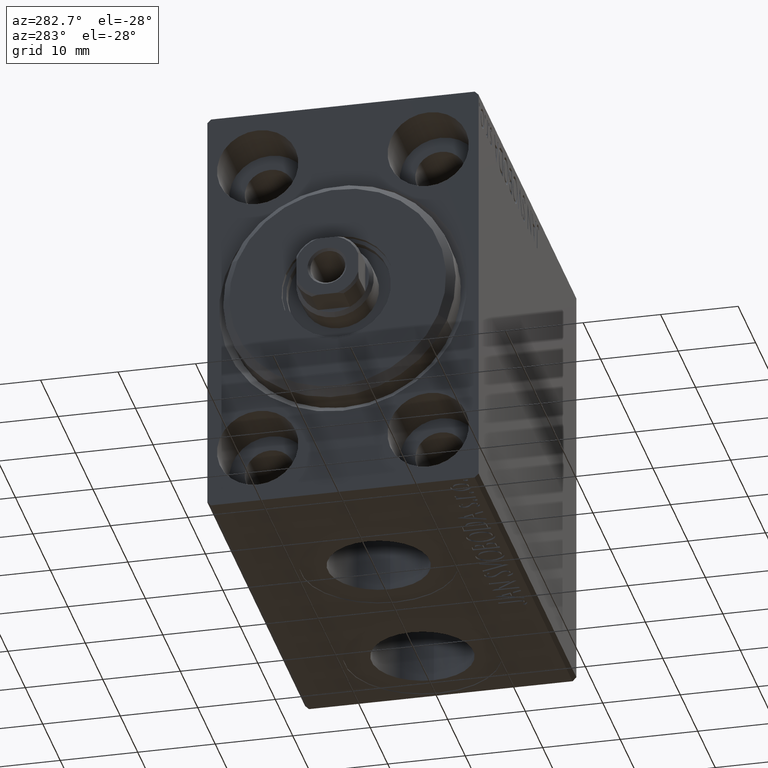
[diagram: clean part render]
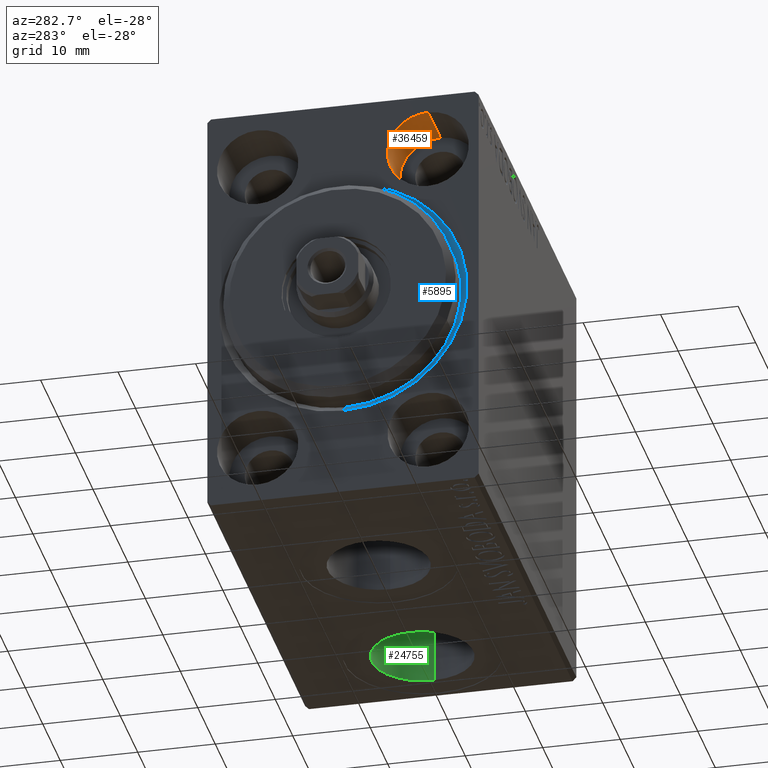
[diagram: same view with three faces highlighted in distinct colors, each labeled with its STEP entity id]
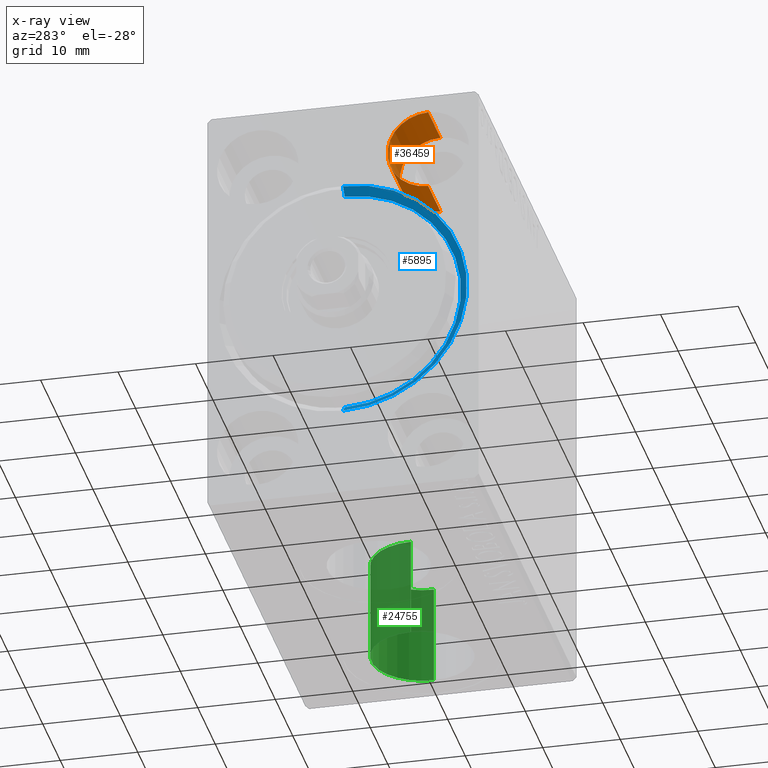
[diagram: x-ray of the same camera — body ghosted, the three highlighted faces saturated]
A machine part, auxiliary view with three faces highlighted in distinct colors.
The next image is the same camera in x-ray (body ghosted, the three faces saturated) — at least one of them is partly hidden behind the body in this view.
Their STEP definitions:

[orange] entity #36459 — the highlighted cylindrical surface (partial cylindrical patch) has radius 5.25 mm, axis along (-1, -0, -0).
#1377 = EDGE_CURVE ( 'NONE', #40931, #34586, #14548, .T. ) ;
#2430 = DIRECTION ( 'NONE',  ( 0.000000000000000000, 0.000000000000000000, 1.000000000000000000 ) ) ;
#2971 = DIRECTION ( 'NONE',  ( -1.000000000000000000, 0.000000000000000000, 0.000000000000000000 ) ) ;
#3092 = AXIS2_PLACEMENT_3D ( 'NONE', #20526, #30563, #30122 ) ;
#3186 = CARTESIAN_POINT ( 'NONE',  ( 0.000000000000000000, -11.00000000000000355, 20.00000000000000000 ) ) ;
#3348 = CARTESIAN_POINT ( 'NONE',  ( 0.000000000000000000, -11.00000000000000355, 25.25000000000000000 ) ) ;
#6127 = DIRECTION ( 'NONE',  ( -1.000000000000000000, -0.000000000000000000, -0.000000000000000000 ) ) ;
#8462 = DIRECTION ( 'NONE',  ( -1.000000000000000000, 0.000000000000000000, 0.000000000000000000 ) ) ;
#8815 = AXIS2_PLACEMENT_3D ( 'NONE', #36051, #8462, #2430 ) ;
#8896 = ORIENTED_EDGE ( 'NONE', *, *, #42881, .F. ) ;
#9333 = CARTESIAN_POINT ( 'NONE',  ( 7.000000000000000000, -11.00000000000000355, 14.75000000000000000 ) ) ;
#11078 = VERTEX_POINT ( 'NONE', #9333 ) ;
#11585 = CARTESIAN_POINT ( 'NONE',  ( 7.000000000000000000, -11.00000000000000355, 14.75000000000000000 ) ) ;
#12241 = DIRECTION ( 'NONE',  ( -1.000000000000000000, -0.000000000000000000, -0.000000000000000000 ) ) ;
#14548 = CIRCLE ( 'NONE', #40868, 5.250000000000000888 ) ;
#15639 = EDGE_CURVE ( 'NONE', #30428, #40931, #24630, .T. ) ;
#19665 = DIRECTION ( 'NONE',  ( 0.000000000000000000, 0.000000000000000000, 1.000000000000000000 ) ) ;
#20526 = CARTESIAN_POINT ( 'NONE',  ( 7.000000000000000000, -11.00000000000000355, 20.00000000000000000 ) ) ;
#21620 = ORIENTED_EDGE ( 'NONE', *, *, #32377, .F. ) ;
#21876 = ORIENTED_EDGE ( 'NONE', *, *, #1377, .T. ) ;
#23651 = FACE_OUTER_BOUND ( 'NONE', #33334, .T. ) ;
#24505 = LINE ( 'NONE', #11585, #33556 ) ;
#24630 = LINE ( 'NONE', #38208, #26185 ) ;
#26185 = VECTOR ( 'NONE', #6127, 1000.000000000000000 ) ;
#28012 = CIRCLE ( 'NONE', #8815, 5.250000000000000888 ) ;
#28193 = ORIENTED_EDGE ( 'NONE', *, *, #15639, .T. ) ;
#30122 = DIRECTION ( 'NONE',  ( 0.000000000000000000, 0.000000000000000000, 1.000000000000000000 ) ) ;
#30428 = VERTEX_POINT ( 'NONE', #40317 ) ;
#30563 = DIRECTION ( 'NONE',  ( -1.000000000000000000, -0.000000000000000000, -0.000000000000000000 ) ) ;
#31552 = CARTESIAN_POINT ( 'NONE',  ( 0.000000000000000000, -11.00000000000000355, 14.75000000000000000 ) ) ;
#32377 = EDGE_CURVE ( 'NONE', #11078, #34586, #24505, .T. ) ;
#33334 = EDGE_LOOP ( 'NONE', ( #21620, #8896, #28193, #21876 ) ) ;
#33556 = VECTOR ( 'NONE', #12241, 1000.000000000000000 ) ;
#34586 = VERTEX_POINT ( 'NONE', #31552 ) ;
#36051 = CARTESIAN_POINT ( 'NONE',  ( 7.000000000000000000, -11.00000000000000355, 20.00000000000000000 ) ) ;
#36459 = ADVANCED_FACE ( 'NONE', ( #23651 ), #43703, .F. ) ;
#38208 = CARTESIAN_POINT ( 'NONE',  ( 7.000000000000000000, -11.00000000000000355, 25.25000000000000000 ) ) ;
#40317 = CARTESIAN_POINT ( 'NONE',  ( 7.000000000000000000, -11.00000000000000355, 25.25000000000000000 ) ) ;
#40868 = AXIS2_PLACEMENT_3D ( 'NONE', #3186, #2971, #19665 ) ;
#40931 = VERTEX_POINT ( 'NONE', #3348 ) ;
#42881 = EDGE_CURVE ( 'NONE', #30428, #11078, #28012, .T. ) ;
#43703 = CYLINDRICAL_SURFACE ( 'NONE', #3092, 5.250000000000000888 ) ;

[blue] entity #5895 — the highlighted conical surface has half-angle 45 deg.
#1381 = VERTEX_POINT ( 'NONE', #2308 ) ;
#1423 = CARTESIAN_POINT ( 'NONE',  ( 1.000000000000013101, 0.000000000000000000, 15.00000000000000000 ) ) ;
#1534 = CARTESIAN_POINT ( 'NONE',  ( 1.000000000000013101, 0.000000000000000000, 15.00000000000000000 ) ) ;
#1758 = LINE ( 'NONE', #26016, #6624 ) ;
#2308 = CARTESIAN_POINT ( 'NONE',  ( 1.000000000000013101, 1.836970198721029589E-15, -15.00000000000000000 ) ) ;
#3047 = DIRECTION ( 'NONE',  ( 1.000000000000000000, 0.000000000000000000, 0.000000000000000000 ) ) ;
#4274 = CIRCLE ( 'NONE', #12794, 16.00000000000001421 ) ;
#4718 = CARTESIAN_POINT ( 'NONE',  ( 1.000000000000013101, 0.000000000000000000, 0.000000000000000000 ) ) ;
#5395 = CONICAL_SURFACE ( 'NONE', #29583, 15.00000000000000000, 0.7853981633974491672 ) ;
#5674 = DIRECTION ( 'NONE',  ( 0.000000000000000000, 0.000000000000000000, -1.000000000000000000 ) ) ;
#5895 = ADVANCED_FACE ( 'NONE', ( #15174 ), #5395, .F. ) ;
#6624 = VECTOR ( 'NONE', #15333, 1000.000000000000114 ) ;
#9724 = DIRECTION ( 'NONE',  ( 0.000000000000000000, 0.000000000000000000, -1.000000000000000000 ) ) ;
#9812 = DIRECTION ( 'NONE',  ( 0.000000000000000000, 0.000000000000000000, 1.000000000000000000 ) ) ;
#12794 = AXIS2_PLACEMENT_3D ( 'NONE', #33559, #3047, #9724 ) ;
#15174 = FACE_OUTER_BOUND ( 'NONE', #32669, .T. ) ;
#15333 = DIRECTION ( 'NONE',  ( -0.7071067811865469066, 8.659560562354940254E-17, -0.7071067811865481278 ) ) ;
#19836 = VERTEX_POINT ( 'NONE', #23410 ) ;
#21201 = EDGE_CURVE ( 'NONE', #32529, #19836, #4274, .T. ) ;
#21359 = DIRECTION ( 'NONE',  ( -0.7071067811865469066, 0.000000000000000000, 0.7071067811865481278 ) ) ;
#21409 = CIRCLE ( 'NONE', #34899, 15.00000000000000000 ) ;
#22046 = CARTESIAN_POINT ( 'NONE',  ( 0.000000000000000000, 0.000000000000000000, 16.00000000000001421 ) ) ;
#22383 = CARTESIAN_POINT ( 'NONE',  ( 1.000000000000013101, 0.000000000000000000, 0.000000000000000000 ) ) ;
#23410 = CARTESIAN_POINT ( 'NONE',  ( 0.000000000000000000, 1.959434878635766709E-15, -16.00000000000001421 ) ) ;
#23499 = EDGE_CURVE ( 'NONE', #1381, #37654, #21409, .T. ) ;
#26016 = CARTESIAN_POINT ( 'NONE',  ( 1.000000000000013101, 1.836970198721029589E-15, -15.00000000000000000 ) ) ;
#29546 = ORIENTED_EDGE ( 'NONE', *, *, #21201, .F. ) ;
#29583 = AXIS2_PLACEMENT_3D ( 'NONE', #4718, #38776, #9812 ) ;
#32529 = VERTEX_POINT ( 'NONE', #22046 ) ;
#32669 = EDGE_LOOP ( 'NONE', ( #41048, #34391, #29546, #40642 ) ) ;
#33559 = CARTESIAN_POINT ( 'NONE',  ( 0.000000000000000000, 0.000000000000000000, 0.000000000000000000 ) ) ;
#34391 = ORIENTED_EDGE ( 'NONE', *, *, #35271, .T. ) ;
#34899 = AXIS2_PLACEMENT_3D ( 'NONE', #22383, #35959, #5674 ) ;
#35199 = EDGE_CURVE ( 'NONE', #37654, #32529, #38718, .T. ) ;
#35271 = EDGE_CURVE ( 'NONE', #1381, #19836, #1758, .T. ) ;
#35959 = DIRECTION ( 'NONE',  ( -1.000000000000000000, 0.000000000000000000, 0.000000000000000000 ) ) ;
#37654 = VERTEX_POINT ( 'NONE', #1423 ) ;
#38718 = LINE ( 'NONE', #1534, #39324 ) ;
#38776 = DIRECTION ( 'NONE',  ( -1.000000000000000000, 0.000000000000000000, 0.000000000000000000 ) ) ;
#39324 = VECTOR ( 'NONE', #21359, 1000.000000000000114 ) ;
#40642 = ORIENTED_EDGE ( 'NONE', *, *, #35199, .F. ) ;
#41048 = ORIENTED_EDGE ( 'NONE', *, *, #23499, .F. ) ;

[green] entity #24755 — the highlighted cylindrical surface (partial cylindrical patch) has radius 6.58 mm, axis along (-0, -0, -1).
#562 = VECTOR ( 'NONE', #21114, 1000.000000000000000 ) ;
#1914 = CARTESIAN_POINT ( 'NONE',  ( 45.50000000000000000, -5.788603209277299718E-15, -14.50000000000000355 ) ) ;
#2023 = DIRECTION ( 'NONE',  ( -0.000000000000000000, -0.000000000000000000, -1.000000000000000000 ) ) ;
#3008 = LINE ( 'NONE', #16585, #9905 ) ;
#5795 = FACE_OUTER_BOUND ( 'NONE', #26342, .T. ) ;
#8588 = DIRECTION ( 'NONE',  ( 0.000000000000000000, 0.000000000000000000, -1.000000000000000000 ) ) ;
#9905 = VECTOR ( 'NONE', #37067, 1000.000000000000000 ) ;
#11287 = EDGE_CURVE ( 'NONE', #21668, #39916, #11315, .T. ) ;
#11315 = LINE ( 'NONE', #41602, #562 ) ;
#12919 = CYLINDRICAL_SURFACE ( 'NONE', #15729, 6.580000000000002736 ) ;
#13190 = CARTESIAN_POINT ( 'NONE',  ( 52.07999999999999829, -4.982785615438341465E-15, -14.50000000000000355 ) ) ;
#14739 = VERTEX_POINT ( 'NONE', #13190 ) ;
#15271 = ORIENTED_EDGE ( 'NONE', *, *, #15652, .F. ) ;
#15652 = EDGE_CURVE ( 'NONE', #21668, #14739, #33990, .T. ) ;
#15729 = AXIS2_PLACEMENT_3D ( 'NONE', #26509, #2023, #19377 ) ;
#16585 = CARTESIAN_POINT ( 'NONE',  ( 52.07999999999999829, -4.982785615438341465E-15, -14.50000000000000355 ) ) ;
#17006 = EDGE_CURVE ( 'NONE', #39916, #43248, #23384, .T. ) ;
#19036 = EDGE_CURVE ( 'NONE', #14739, #43248, #3008, .T. ) ;
#19377 = DIRECTION ( 'NONE',  ( -1.000000000000000000, 0.000000000000000000, 0.000000000000000000 ) ) ;
#21114 = DIRECTION ( 'NONE',  ( -0.000000000000000000, -0.000000000000000000, -1.000000000000000000 ) ) ;
#21668 = VERTEX_POINT ( 'NONE', #41443 ) ;
#22213 = CARTESIAN_POINT ( 'NONE',  ( 52.07999999999999829, -4.982785615438341465E-15, -27.40000000000000568 ) ) ;
#23265 = ORIENTED_EDGE ( 'NONE', *, *, #17006, .T. ) ;
#23384 = CIRCLE ( 'NONE', #35457, 6.580000000000002736 ) ;
#24755 = ADVANCED_FACE ( 'NONE', ( #5795 ), #12919, .F. ) ;
#26342 = EDGE_LOOP ( 'NONE', ( #37639, #15271, #27550, #23265 ) ) ;
#26509 = CARTESIAN_POINT ( 'NONE',  ( 45.50000000000000000, -5.788603209277299718E-15, -14.50000000000000355 ) ) ;
#27550 = ORIENTED_EDGE ( 'NONE', *, *, #11287, .T. ) ;
#29248 = CARTESIAN_POINT ( 'NONE',  ( 45.50000000000000000, -5.788603209277299718E-15, -27.40000000000000568 ) ) ;
#29754 = AXIS2_PLACEMENT_3D ( 'NONE', #1914, #8588, #33298 ) ;
#33298 = DIRECTION ( 'NONE',  ( -1.000000000000000000, 0.000000000000000000, 0.000000000000000000 ) ) ;
#33990 = CIRCLE ( 'NONE', #29754, 6.580000000000002736 ) ;
#35457 = AXIS2_PLACEMENT_3D ( 'NONE', #29248, #43493, #43047 ) ;
#37067 = DIRECTION ( 'NONE',  ( -0.000000000000000000, -0.000000000000000000, -1.000000000000000000 ) ) ;
#37639 = ORIENTED_EDGE ( 'NONE', *, *, #19036, .F. ) ;
#39916 = VERTEX_POINT ( 'NONE', #42937 ) ;
#41443 = CARTESIAN_POINT ( 'NONE',  ( 38.91999999999999460, -5.788603209277299718E-15, -14.50000000000000355 ) ) ;
#41602 = CARTESIAN_POINT ( 'NONE',  ( 38.91999999999999460, -5.788603209277299718E-15, -14.50000000000000355 ) ) ;
#42937 = CARTESIAN_POINT ( 'NONE',  ( 38.91999999999999460, -5.788603209277299718E-15, -27.40000000000000568 ) ) ;
#43047 = DIRECTION ( 'NONE',  ( -1.000000000000000000, 0.000000000000000000, 0.000000000000000000 ) ) ;
#43248 = VERTEX_POINT ( 'NONE', #22213 ) ;
#43493 = DIRECTION ( 'NONE',  ( 0.000000000000000000, 0.000000000000000000, -1.000000000000000000 ) ) ;